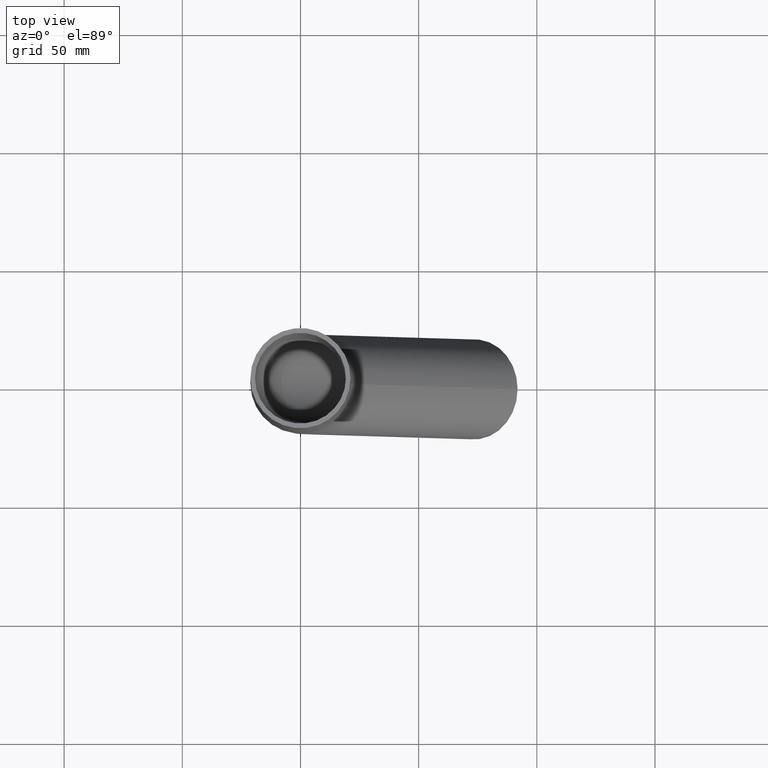
[diagram: clean part render]
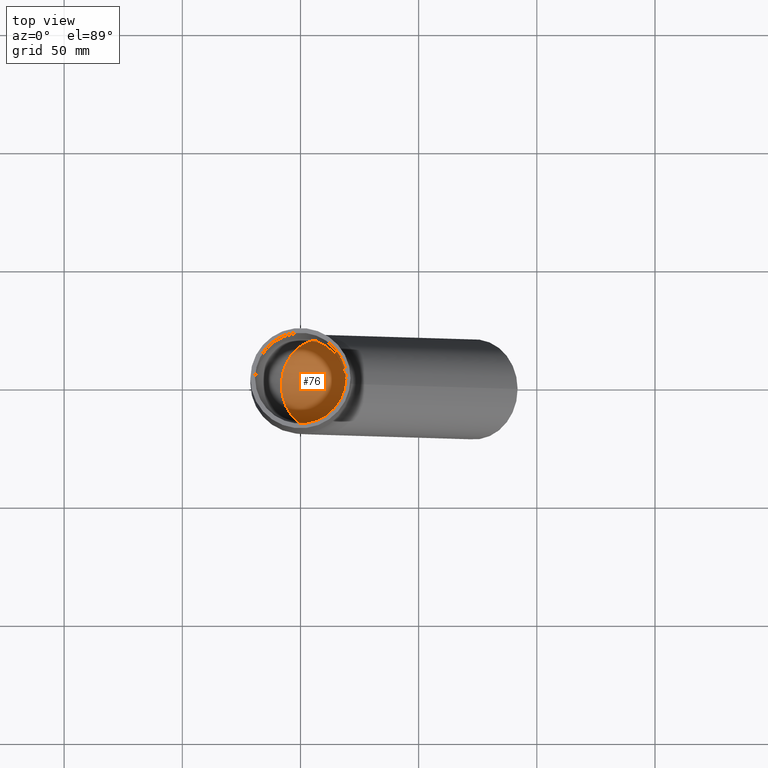
[diagram: same view with one face highlighted and labeled with its STEP entity id]
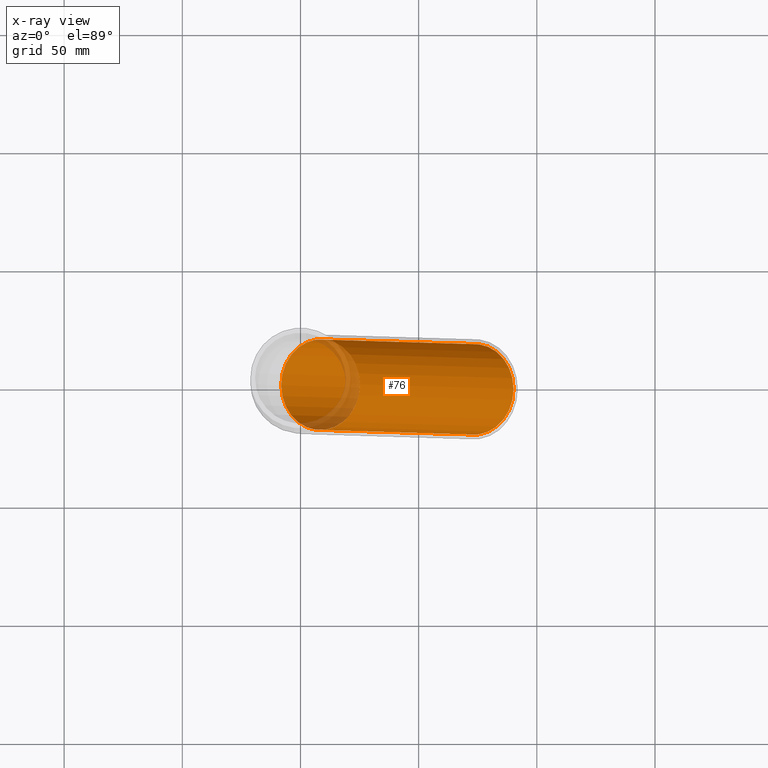
[diagram: x-ray of the same camera — body ghosted, the highlighted face saturated]
A machine part, top view. The second image highlights one B-rep face of the part: STEP entity #76.
The next image is the same camera in x-ray: the body ghosted, the highlighted face saturated — about 8% of this face is hidden behind the body in this view.
In plain terms, the highlighted cylindrical surface (bore or boss wall) has radius 19.2 mm, axis along (0.5, 0, -0.866).
Its self-contained STEP definition (entity closure, byte-faithful):
#76=ADVANCED_FACE('',(#148,#150),#152,.F.);
#148=FACE_OUTER_BOUND('',#149,.T.);
#149=EDGE_LOOP('',(#206));
#150=FACE_OUTER_BOUND('',#151,.T.);
#151=EDGE_LOOP('',(#207));
#152=CYLINDRICAL_SURFACE('',#153,19.2);
#153=AXIS2_PLACEMENT_3D('',#154,#155,#156);
#154=CARTESIAN_POINT('',(8.5207843193097,0.,-161.8));
#155=DIRECTION('',(0.5,0.,-0.866025403784439));
#156=DIRECTION('',(0.866025403784439,0.,0.5));
#206=ORIENTED_EDGE('',*,*,#221,.T.);
#207=ORIENTED_EDGE('',*,*,#220,.F.);
#220=EDGE_CURVE('',#230,#230,#231,.T.);
#221=EDGE_CURVE('',#232,#232,#233,.T.);
#230=VERTEX_POINT('',#252);
#231=CIRCLE('',#253,19.2);
#232=VERTEX_POINT('',#257);
#233=CIRCLE('',#258,19.2);
#252=CARTESIAN_POINT('',(25.1484720719709,2.35132185436292E-015,-152.2));
#253=AXIS2_PLACEMENT_3D('',#254,#255,#256);
#254=CARTESIAN_POINT('',(8.5207843193097,0.,-161.8));
#255=DIRECTION('',(0.5,0.,-0.866025403784439));
#256=DIRECTION('',(0.866025403784439,0.,0.5));
#257=CARTESIAN_POINT('',(90.1484720719709,4.70264370872584E-015,-264.783302491977));
#258=AXIS2_PLACEMENT_3D('',#259,#260,#261);
#259=CARTESIAN_POINT('',(73.5207843193097,0.,-274.383302491977));
#260=DIRECTION('',(0.5,0.,-0.866025403784438));
#261=DIRECTION('',(0.866025403784439,0.,0.5));